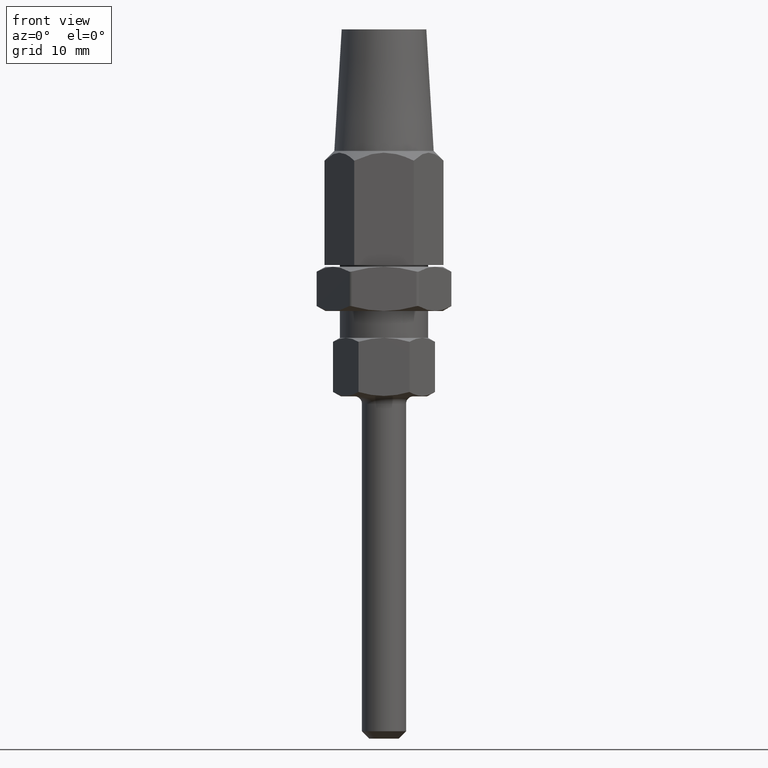
[diagram: clean part render]
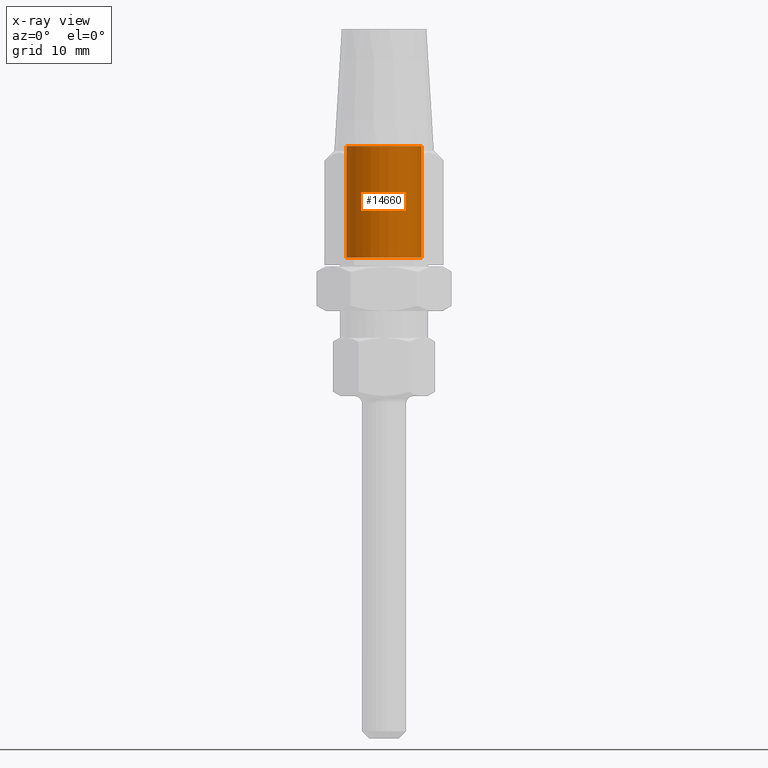
[diagram: x-ray — body ghosted, one internal face saturated and labeled with its STEP entity id]
A machine part, front view, then the same camera in x-ray: the body is ghosted and one INTERNAL B-rep face — a face not visible from any outside direction — is saturated and labeled: STEP entity #14660.
In plain terms, the highlighted cylindrical surface (partial cylindrical patch) has radius 5.1 mm, axis along (0, 0, 1).
Its self-contained STEP definition (entity closure, byte-faithful):
#914 = CYLINDRICAL_SURFACE ( 'NONE', #8154, 5.099999999999997000 ) ;
#1365 = CIRCLE ( 'NONE', #1599, 5.099999999999997000 ) ;
#1599 = AXIS2_PLACEMENT_3D ( 'NONE', #3818, #5197, #7920 ) ;
#1840 = CARTESIAN_POINT ( 'NONE',  ( 0.0000000000000000000, 0.0000000000000000000, 15.50000000000000000 ) ) ;
#2379 = DIRECTION ( 'NONE',  ( -0.0000000000000000000, -0.0000000000000000000, 1.000000000000000000 ) ) ;
#3185 = DIRECTION ( 'NONE',  ( -0.0000000000000000000, -0.0000000000000000000, 1.000000000000000000 ) ) ;
#3255 = DIRECTION ( 'NONE',  ( 1.000000000000000000, 0.0000000000000000000, 0.0000000000000000000 ) ) ;
#3271 = EDGE_LOOP ( 'NONE', ( #13325, #16471, #13952, #13564 ) ) ;
#3589 = CARTESIAN_POINT ( 'NONE',  ( 5.099999999999997000, 0.0000000000000000000, 15.50000000000000000 ) ) ;
#3818 = CARTESIAN_POINT ( 'NONE',  ( -3.661279318773260800E-018, 0.0000000000000000000, 16.15000000000002000 ) ) ;
#4384 = VECTOR ( 'NONE', #2379, 1000.000000000000000 ) ;
#5197 = DIRECTION ( 'NONE',  ( 1.092877767060727200E-016, -0.0000000000000000000, 1.000000000000000000 ) ) ;
#5406 = FACE_OUTER_BOUND ( 'NONE', #3271, .T. ) ;
#5806 = VECTOR ( 'NONE', #6044, 1000.000000000000000 ) ;
#6044 = DIRECTION ( 'NONE',  ( -0.0000000000000000000, -0.0000000000000000000, 1.000000000000000000 ) ) ;
#6074 = EDGE_CURVE ( 'NONE', #15395, #8206, #8368, .T. ) ;
#6928 = CARTESIAN_POINT ( 'NONE',  ( 0.0000000000000000000, 0.0000000000000000000, 1.000000000000000900 ) ) ;
#7920 = DIRECTION ( 'NONE',  ( -1.000000000000000000, 0.0000000000000000000, 0.0000000000000000000 ) ) ;
#7997 = LINE ( 'NONE', #3589, #4384 ) ;
#8154 = AXIS2_PLACEMENT_3D ( 'NONE', #1840, #3185, #11443 ) ;
#8206 = VERTEX_POINT ( 'NONE', #12125 ) ;
#8368 = LINE ( 'NONE', #11346, #5806 ) ;
#9661 = AXIS2_PLACEMENT_3D ( 'NONE', #6928, #15032, #3255 ) ;
#11346 = CARTESIAN_POINT ( 'NONE',  ( -5.099999999999997000, 6.245698675651497900E-016, 15.50000000000000000 ) ) ;
#11443 = DIRECTION ( 'NONE',  ( 1.000000000000000000, 0.0000000000000000000, 0.0000000000000000000 ) ) ;
#12125 = CARTESIAN_POINT ( 'NONE',  ( -5.099999999999997000, 6.245698675651497900E-016, 16.15000000000002000 ) ) ;
#12288 = EDGE_CURVE ( 'NONE', #17133, #17219, #7997, .T. ) ;
#12486 = EDGE_CURVE ( 'NONE', #8206, #17219, #1365, .T. ) ;
#12844 = CARTESIAN_POINT ( 'NONE',  ( -5.099999999999997000, 6.245698675651497900E-016, 1.000000000000000900 ) ) ;
#13193 = CARTESIAN_POINT ( 'NONE',  ( 5.099999999999997000, 0.0000000000000000000, 1.000000000000000900 ) ) ;
#13325 = ORIENTED_EDGE ( 'NONE', *, *, #14473, .T. ) ;
#13564 = ORIENTED_EDGE ( 'NONE', *, *, #12288, .F. ) ;
#13794 = CIRCLE ( 'NONE', #9661, 5.099999999999997000 ) ;
#13952 = ORIENTED_EDGE ( 'NONE', *, *, #12486, .T. ) ;
#14473 = EDGE_CURVE ( 'NONE', #17133, #15395, #13794, .T. ) ;
#14660 = ADVANCED_FACE ( 'NONE', ( #5406 ), #914, .F. ) ;
#15032 = DIRECTION ( 'NONE',  ( -0.0000000000000000000, -0.0000000000000000000, -1.000000000000000000 ) ) ;
#15395 = VERTEX_POINT ( 'NONE', #12844 ) ;
#16471 = ORIENTED_EDGE ( 'NONE', *, *, #6074, .T. ) ;
#17133 = VERTEX_POINT ( 'NONE', #13193 ) ;
#17219 = VERTEX_POINT ( 'NONE', #17668 ) ;
#17668 = CARTESIAN_POINT ( 'NONE',  ( 5.099999999999997000, 0.0000000000000000000, 16.15000000000002000 ) ) ;